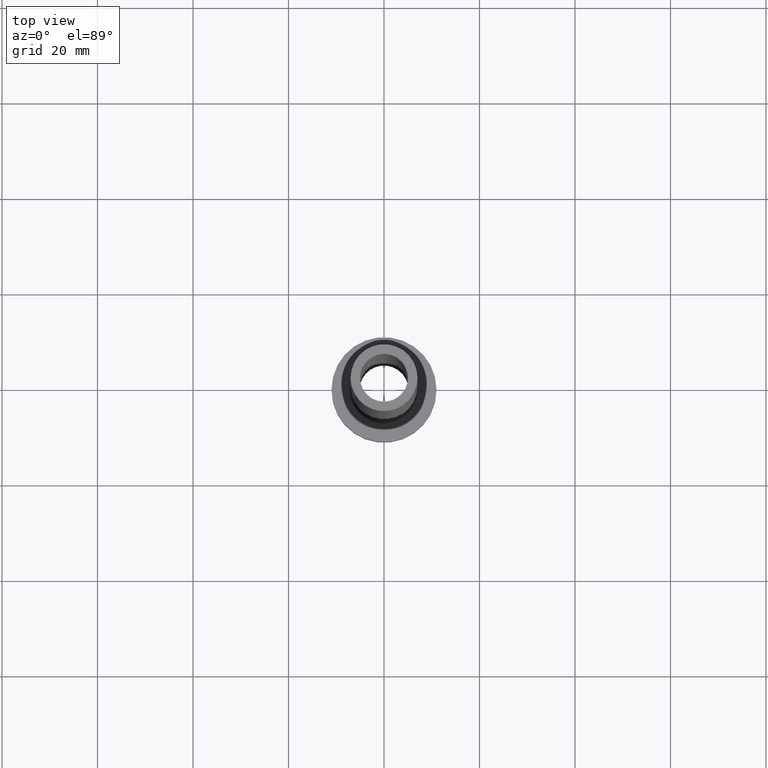
[diagram: clean part render]
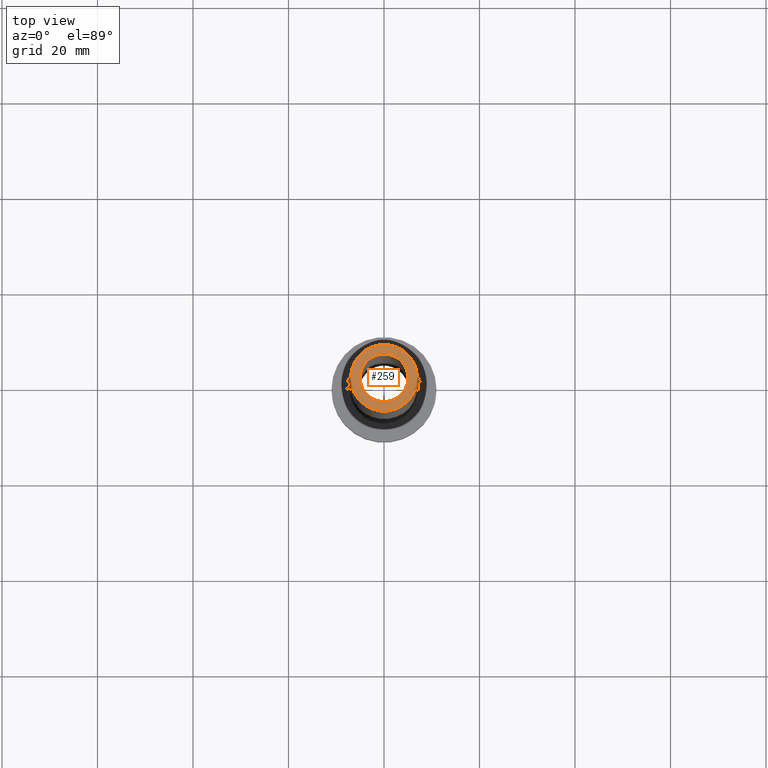
[diagram: same view with one face highlighted and labeled with its STEP entity id]
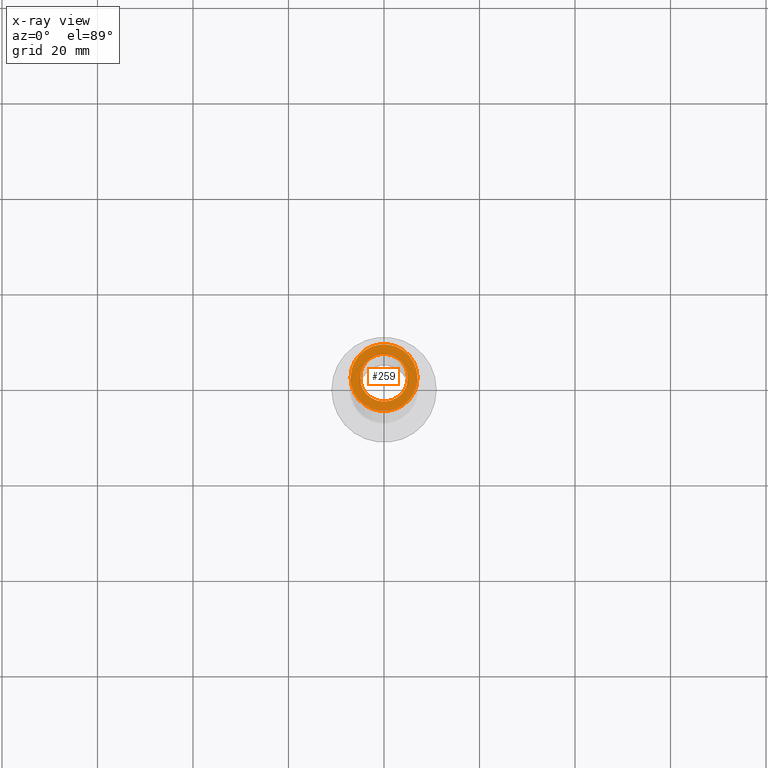
[diagram: x-ray of the same camera — body ghosted, the highlighted face saturated]
A machine part, top view. The second image highlights one B-rep face of the part: STEP entity #259.
The next image is the same camera in x-ray: the body ghosted, the highlighted face saturated — about 0% of this face is hidden behind the body in this view.
In plain terms, the highlighted planar face has unit normal (0, 0, 1).
Its self-contained STEP definition (entity closure, byte-faithful):
#5 = CIRCLE ( 'NONE', #233, 7.000000000000000888 ) ;
#8 = CARTESIAN_POINT ( 'NONE',  ( -7.000000000000000888, 0.000000000000000000, 150.0000000000000000 ) ) ;
#15 = CIRCLE ( 'NONE', #260, 5.000000000000000000 ) ;
#22 = CIRCLE ( 'NONE', #186, 5.000000000000000000 ) ;
#37 = ORIENTED_EDGE ( 'NONE', *, *, #305, .T. ) ;
#53 = VERTEX_POINT ( 'NONE', #308 ) ;
#64 = CARTESIAN_POINT ( 'NONE',  ( 0.000000000000000000, 0.000000000000000000, 150.0000000000000000 ) ) ;
#76 = DIRECTION ( 'NONE',  ( 0.000000000000000000, 0.000000000000000000, 1.000000000000000000 ) ) ;
#81 = ORIENTED_EDGE ( 'NONE', *, *, #230, .F. ) ;
#88 = EDGE_LOOP ( 'NONE', ( #37, #156 ) ) ;
#92 = CARTESIAN_POINT ( 'NONE',  ( 0.000000000000000000, 0.000000000000000000, 150.0000000000000000 ) ) ;
#95 = DIRECTION ( 'NONE',  ( 1.000000000000000000, 0.000000000000000000, -0.000000000000000000 ) ) ;
#104 = ORIENTED_EDGE ( 'NONE', *, *, #347, .F. ) ;
#106 = DIRECTION ( 'NONE',  ( 1.000000000000000000, 0.000000000000000000, 0.000000000000000000 ) ) ;
#115 = DIRECTION ( 'NONE',  ( 1.000000000000000000, 0.000000000000000000, 0.000000000000000000 ) ) ;
#128 = CIRCLE ( 'NONE', #401, 7.000000000000000888 ) ;
#129 = CARTESIAN_POINT ( 'NONE',  ( 0.000000000000000000, 0.000000000000000000, 150.0000000000000000 ) ) ;
#131 = DIRECTION ( 'NONE',  ( 0.000000000000000000, 0.000000000000000000, 1.000000000000000000 ) ) ;
#156 = ORIENTED_EDGE ( 'NONE', *, *, #367, .T. ) ;
#186 = AXIS2_PLACEMENT_3D ( 'NONE', #360, #76, #225 ) ;
#190 = DIRECTION ( 'NONE',  ( 0.000000000000000000, 0.000000000000000000, 1.000000000000000000 ) ) ;
#223 = DIRECTION ( 'NONE',  ( 0.000000000000000000, 0.000000000000000000, 1.000000000000000000 ) ) ;
#225 = DIRECTION ( 'NONE',  ( 1.000000000000000000, 0.000000000000000000, 0.000000000000000000 ) ) ;
#230 = EDGE_CURVE ( 'NONE', #379, #53, #22, .T. ) ;
#233 = AXIS2_PLACEMENT_3D ( 'NONE', #129, #190, #106 ) ;
#259 = ADVANCED_FACE ( 'NONE', ( #440, #332 ), #262, .T. ) ;
#260 = AXIS2_PLACEMENT_3D ( 'NONE', #92, #223, #115 ) ;
#262 = PLANE ( 'NONE',  #451 ) ;
#286 = VERTEX_POINT ( 'NONE', #298 ) ;
#298 = CARTESIAN_POINT ( 'NONE',  ( 7.000000000000000888, 8.572527594031474176E-16, 150.0000000000000000 ) ) ;
#302 = DIRECTION ( 'NONE',  ( 0.000000000000000000, 0.000000000000000000, 1.000000000000000000 ) ) ;
#305 = EDGE_CURVE ( 'NONE', #349, #286, #5, .T. ) ;
#308 = CARTESIAN_POINT ( 'NONE',  ( 5.000000000000000000, 6.123233995736765296E-16, 150.0000000000000000 ) ) ;
#332 = FACE_OUTER_BOUND ( 'NONE', #88, .T. ) ;
#347 = EDGE_CURVE ( 'NONE', #53, #379, #15, .T. ) ;
#349 = VERTEX_POINT ( 'NONE', #8 ) ;
#360 = CARTESIAN_POINT ( 'NONE',  ( 0.000000000000000000, 0.000000000000000000, 150.0000000000000000 ) ) ;
#367 = EDGE_CURVE ( 'NONE', #286, #349, #128, .T. ) ;
#379 = VERTEX_POINT ( 'NONE', #393 ) ;
#386 = EDGE_LOOP ( 'NONE', ( #81, #104 ) ) ;
#393 = CARTESIAN_POINT ( 'NONE',  ( -5.000000000000000000, 0.000000000000000000, 150.0000000000000000 ) ) ;
#401 = AXIS2_PLACEMENT_3D ( 'NONE', #64, #131, #433 ) ;
#433 = DIRECTION ( 'NONE',  ( 1.000000000000000000, 0.000000000000000000, 0.000000000000000000 ) ) ;
#440 = FACE_BOUND ( 'NONE', #386, .T. ) ;
#442 = CARTESIAN_POINT ( 'NONE',  ( 0.000000000000000000, 0.000000000000000000, 150.0000000000000000 ) ) ;
#451 = AXIS2_PLACEMENT_3D ( 'NONE', #442, #302, #95 ) ;